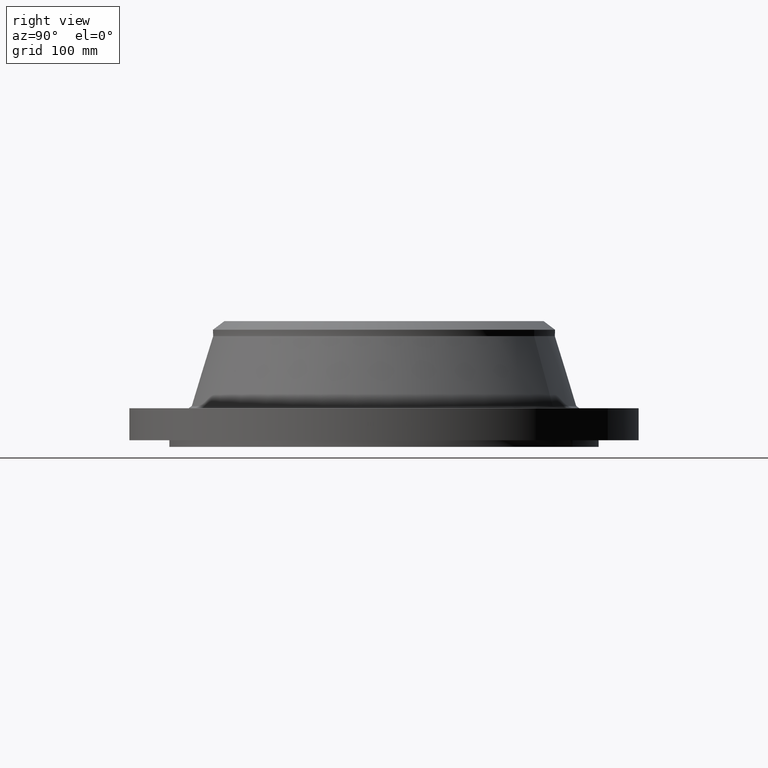
[diagram: clean part render]
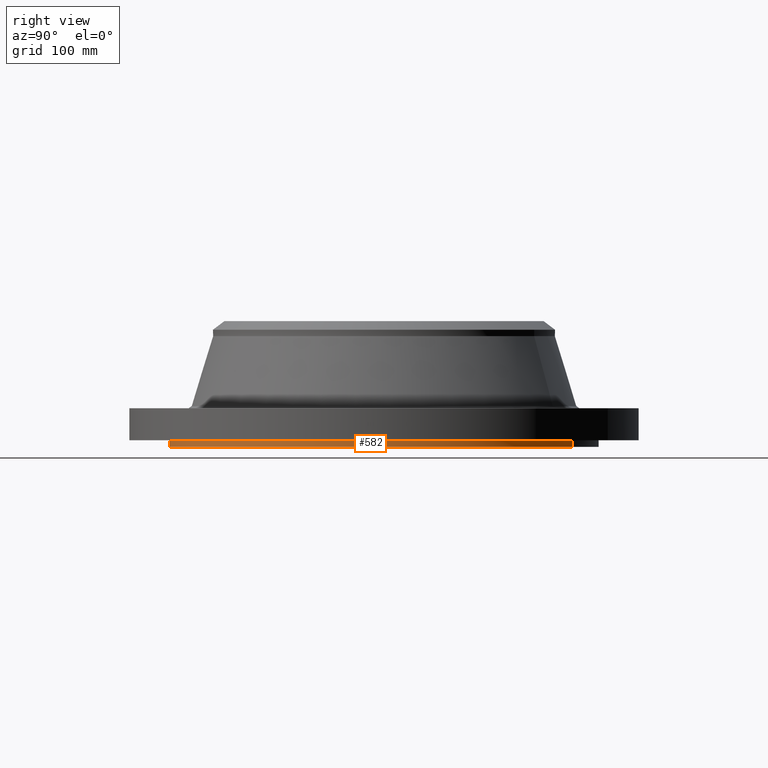
[diagram: same view with one face highlighted and labeled with its STEP entity id]
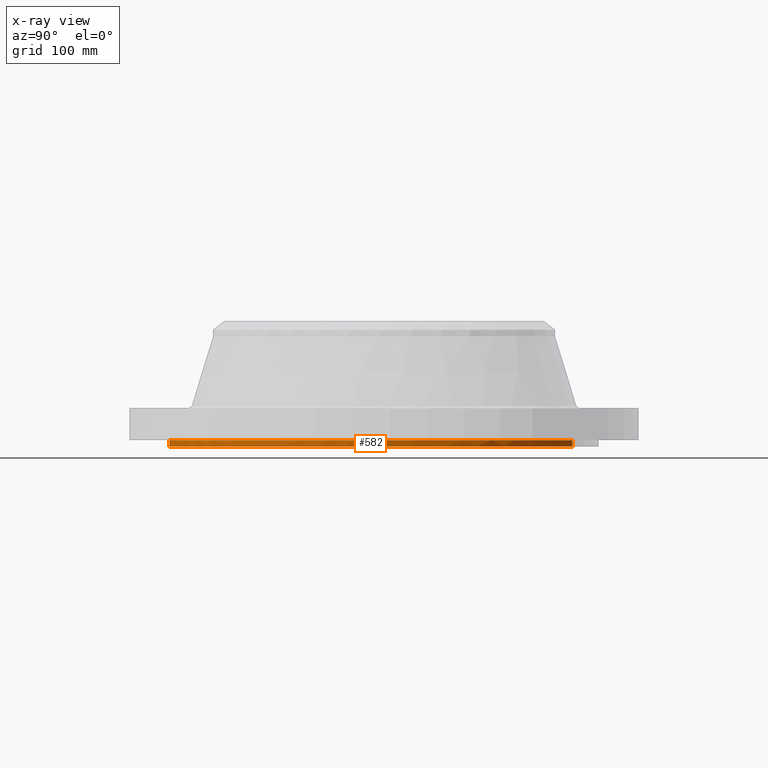
[diagram: x-ray of the same camera — body ghosted, the highlighted face saturated]
A machine part, right view. The second image highlights one B-rep face of the part: STEP entity #582.
The next image is the same camera in x-ray: the body ghosted, the highlighted face saturated — about 0% of this face is hidden behind the body in this view.
In plain terms, the highlighted cylindrical surface (partial cylindrical patch) has radius 203.2 mm, axis along (0, 0, -1).
Its self-contained STEP definition (entity closure, byte-faithful):
#435=AXIS2_PLACEMENT_3D('Cylinder Axis2P3D',#432,#433,#434) ;
#520=AXIS2_PLACEMENT_3D('Circle Axis2P3D',#518,#519,$) ;
#525=AXIS2_PLACEMENT_3D('Circle Axis2P3D',#523,#524,$) ;
#532=AXIS2_PLACEMENT_3D('Circle Axis2P3D',#530,#531,$) ;
#539=AXIS2_PLACEMENT_3D('Circle Axis2P3D',#537,#538,$) ;
#546=AXIS2_PLACEMENT_3D('Circle Axis2P3D',#544,#545,$) ;
#553=AXIS2_PLACEMENT_3D('Circle Axis2P3D',#551,#552,$) ;
#560=AXIS2_PLACEMENT_3D('Circle Axis2P3D',#558,#559,$) ;
#567=AXIS2_PLACEMENT_3D('Circle Axis2P3D',#565,#566,$) ;
#432=CARTESIAN_POINT('Axis2P3D Location',(0.,0.,2.09500000001)) ;
#441=CARTESIAN_POINT('Vertex',(-3.83540430885,-7.02066049515,-0.250000000001)) ;
#443=CARTESIAN_POINT('Vertex',(3.83540430885,7.02066049515,-0.250000000001)) ;
#446=CARTESIAN_POINT('Line Origine',(-3.83540430885,-7.02066049515,-0.125)) ;
#450=CARTESIAN_POINT('Vertex',(-3.83540430885,-7.02066049515,8.39223703654E-016)) ;
#497=CARTESIAN_POINT('Vertex',(3.83540430885,7.02066049515,8.39223703654E-016)) ;
#500=CARTESIAN_POINT('Line Origine',(3.83540430885,7.02066049515,-0.125)) ;
#518=CARTESIAN_POINT('Axis2P3D Location',(0.,0.,-0.250000000001)) ;
#523=CARTESIAN_POINT('Axis2P3D Location',(0.,0.,1.1189649382E-015)) ;
#527=CARTESIAN_POINT('Vertex',(4.00000000002,6.9282032303,0.)) ;
#530=CARTESIAN_POINT('Axis2P3D Location',(0.,0.,1.1189649382E-015)) ;
#534=CARTESIAN_POINT('Vertex',(6.9282032303,4.00000000002,0.)) ;
#537=CARTESIAN_POINT('Axis2P3D Location',(0.,0.,1.1189649382E-015)) ;
#541=CARTESIAN_POINT('Vertex',(8.00000000003,0.,0.)) ;
#544=CARTESIAN_POINT('Axis2P3D Location',(0.,0.,1.1189649382E-015)) ;
#548=CARTESIAN_POINT('Vertex',(6.9282032303,-4.00000000002,0.)) ;
#551=CARTESIAN_POINT('Axis2P3D Location',(0.,0.,1.1189649382E-015)) ;
#555=CARTESIAN_POINT('Vertex',(4.00000000002,-6.9282032303,0.)) ;
#558=CARTESIAN_POINT('Axis2P3D Location',(0.,0.,1.1189649382E-015)) ;
#562=CARTESIAN_POINT('Vertex',(1.4467282801E-015,-8.00000000003,0.)) ;
#565=CARTESIAN_POINT('Axis2P3D Location',(0.,0.,1.1189649382E-015)) ;
#433=DIRECTION('Axis2P3D Direction',(0.,0.,-0.0393700787402)) ;
#434=DIRECTION('Axis2P3D XDirection',(0.0188750212049,0.0345504945626,0.)) ;
#447=DIRECTION('Vector Direction',(0.,0.,-0.0393700787402)) ;
#501=DIRECTION('Vector Direction',(0.,0.,-0.0393700787402)) ;
#519=DIRECTION('Axis2P3D Direction',(0.,0.,-0.0393700787402)) ;
#524=DIRECTION('Axis2P3D Direction',(0.,0.,-0.0393700787402)) ;
#531=DIRECTION('Axis2P3D Direction',(0.,0.,-0.0393700787402)) ;
#538=DIRECTION('Axis2P3D Direction',(0.,0.,-0.0393700787402)) ;
#545=DIRECTION('Axis2P3D Direction',(0.,0.,-0.0393700787402)) ;
#552=DIRECTION('Axis2P3D Direction',(0.,0.,-0.0393700787402)) ;
#559=DIRECTION('Axis2P3D Direction',(0.,0.,-0.0393700787402)) ;
#566=DIRECTION('Axis2P3D Direction',(0.,0.,-0.0393700787402)) ;
#448=VECTOR('Line Direction',#447,0.0393700787402) ;
#502=VECTOR('Line Direction',#501,0.0393700787402) ;
#571=ORIENTED_EDGE('',*,*,#522,.F.) ;
#572=ORIENTED_EDGE('',*,*,#504,.T.) ;
#573=ORIENTED_EDGE('',*,*,#529,.T.) ;
#574=ORIENTED_EDGE('',*,*,#536,.T.) ;
#575=ORIENTED_EDGE('',*,*,#543,.T.) ;
#576=ORIENTED_EDGE('',*,*,#550,.T.) ;
#577=ORIENTED_EDGE('',*,*,#557,.T.) ;
#578=ORIENTED_EDGE('',*,*,#564,.T.) ;
#579=ORIENTED_EDGE('',*,*,#569,.T.) ;
#580=ORIENTED_EDGE('',*,*,#452,.F.) ;
#582=ADVANCED_FACE('PartBody',(#581),#436,.T.) ;
#521=CIRCLE('generated circle',#520,8.00000000003) ;
#526=CIRCLE('generated circle',#525,8.00000000003) ;
#533=CIRCLE('generated circle',#532,8.00000000003) ;
#540=CIRCLE('generated circle',#539,8.00000000003) ;
#547=CIRCLE('generated circle',#546,8.00000000003) ;
#554=CIRCLE('generated circle',#553,8.00000000003) ;
#561=CIRCLE('generated circle',#560,8.00000000003) ;
#568=CIRCLE('generated circle',#567,8.00000000003) ;
#436=CYLINDRICAL_SURFACE('generated cylinder',#435,8.00000000003) ;
#452=EDGE_CURVE('',#442,#451,#449,.F.) ;
#504=EDGE_CURVE('',#444,#498,#503,.F.) ;
#522=EDGE_CURVE('',#444,#442,#521,.T.) ;
#529=EDGE_CURVE('',#498,#528,#526,.T.) ;
#536=EDGE_CURVE('',#528,#535,#533,.T.) ;
#543=EDGE_CURVE('',#535,#542,#540,.T.) ;
#550=EDGE_CURVE('',#542,#549,#547,.T.) ;
#557=EDGE_CURVE('',#549,#556,#554,.T.) ;
#564=EDGE_CURVE('',#556,#563,#561,.T.) ;
#569=EDGE_CURVE('',#563,#451,#568,.T.) ;
#570=EDGE_LOOP('',(#571,#572,#573,#574,#575,#576,#577,#578,#579,#580)) ;
#581=FACE_OUTER_BOUND('',#570,.T.) ;
#449=LINE('Line',#446,#448) ;
#503=LINE('Line',#500,#502) ;
#442=VERTEX_POINT('',#441) ;
#444=VERTEX_POINT('',#443) ;
#451=VERTEX_POINT('',#450) ;
#498=VERTEX_POINT('',#497) ;
#528=VERTEX_POINT('',#527) ;
#535=VERTEX_POINT('',#534) ;
#542=VERTEX_POINT('',#541) ;
#549=VERTEX_POINT('',#548) ;
#556=VERTEX_POINT('',#555) ;
#563=VERTEX_POINT('',#562) ;